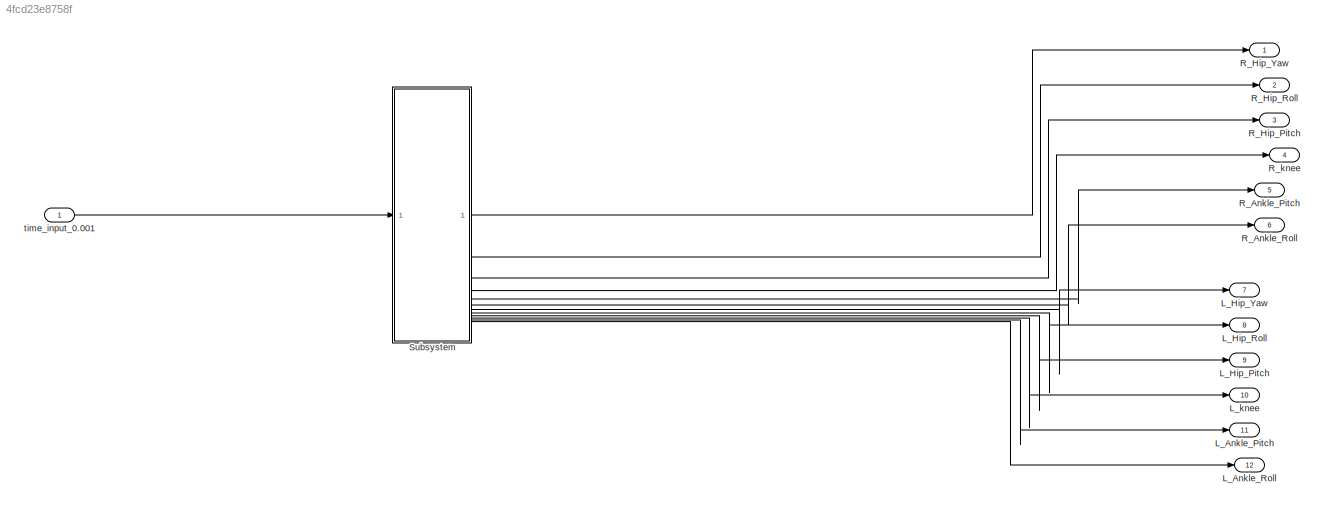
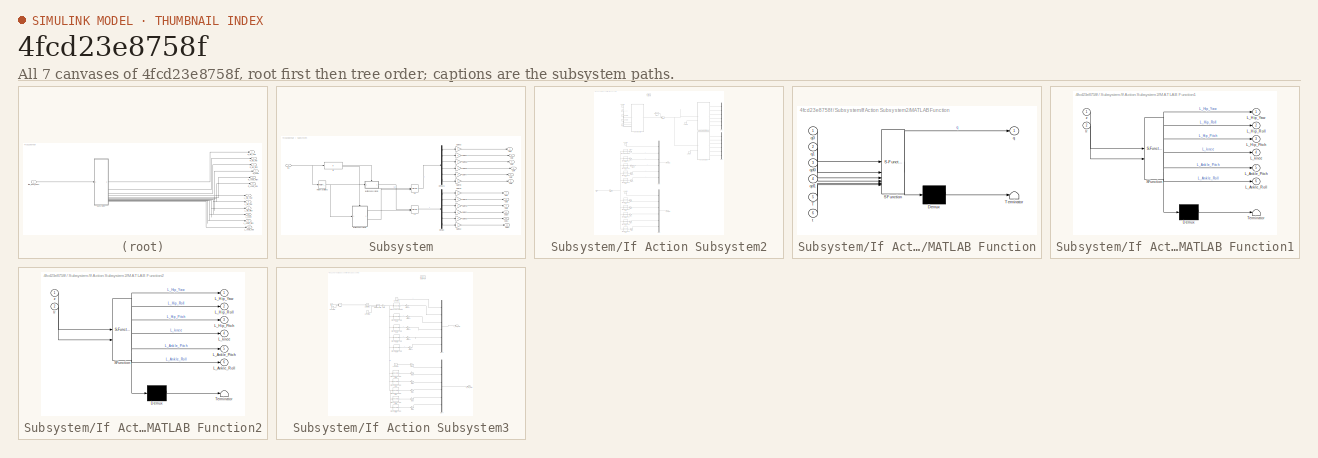
[diagram: thumbnail index - all 7 canvases of the model, root first then tree order]
MODEL mdl_4fcd23e8758f
KIND model
CONFIG AbsTol = auto
CONFIG EnableMultiTasking = off
CONFIG FixedStep = auto
CONFIG MaxStep = 0.001
CONFIG MinStep = auto
CONFIG RelTol = 1e-3
CONFIG SampleTimeConstraint = Unconstrained
CONFIG SolverName = VariableStepDiscrete
CONFIG StartTime = 0.0
CONFIG StopTime = inf
BLOCK [Outport] L_Ankle_Pitch
  Port = 11
BLOCK [Outport] L_Ankle_Roll
  Port = 12
BLOCK [Outport] L_Hip_Pitch
  Port = 9
BLOCK [Outport] L_Hip_Roll
  Port = 8
BLOCK [Outport] L_Hip_Yaw
  Port = 7
BLOCK [Outport] L_knee
  Port = 10
BLOCK [Outport] R_Ankle_Pitch
  Port = 5
BLOCK [Outport] R_Ankle_Roll
  Port = 6
BLOCK [Outport] R_Hip_Pitch
  Port = 3
BLOCK [Outport] R_Hip_Roll
  Port = 2
BLOCK [Outport] R_Hip_Yaw
BLOCK [Outport] R_knee
  Port = 4
BLOCK [SubSystem] Subsystem
BLOCK [Demux] Subsystem/Demux
  Outputs = 6
BLOCK [Demux] Subsystem/Demux1
  Outputs = 6
BLOCK [Gain] Subsystem/Gain45
  Gain = -1
BLOCK [Gain] Subsystem/Gain46
BLOCK [Gain] Subsystem/Gain47
BLOCK [Gain] Subsystem/Gain48
BLOCK [Gain] Subsystem/Gain49
BLOCK [Gain] Subsystem/Gain50
BLOCK [Gain] Subsystem/Gain51
BLOCK [Gain] Subsystem/Gain52
  Gain = -1
BLOCK [Gain] Subsystem/Gain53
BLOCK [Gain] Subsystem/Gain54
  Gain = -1
BLOCK [Gain] Subsystem/Gain55
  Gain = -1
BLOCK [Gain] Subsystem/Gain56
  Gain = -1
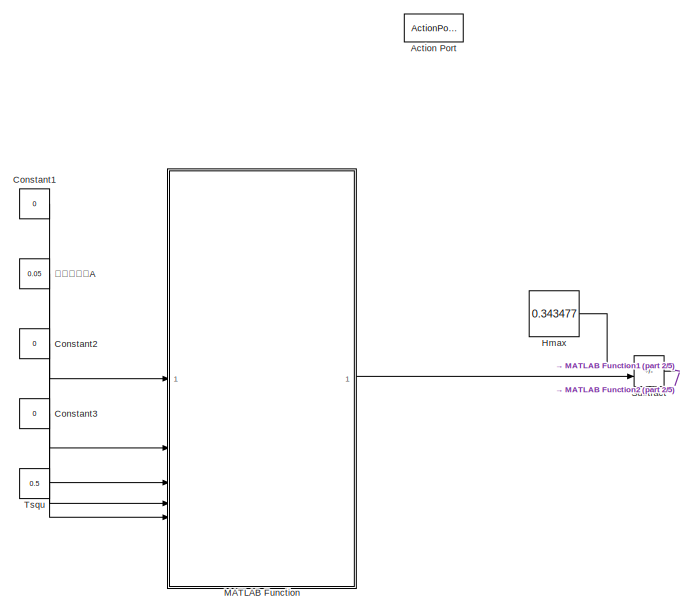
[diagram: Subsystem/If Action Subsystem2 - part 1/5, top center region]
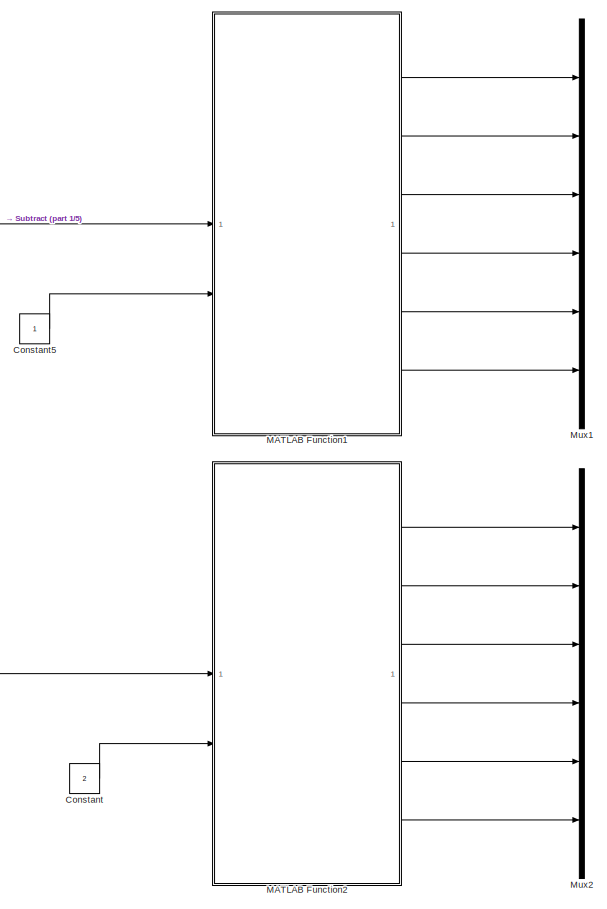
[diagram: Subsystem/If Action Subsystem2 - part 2/5, top right region]
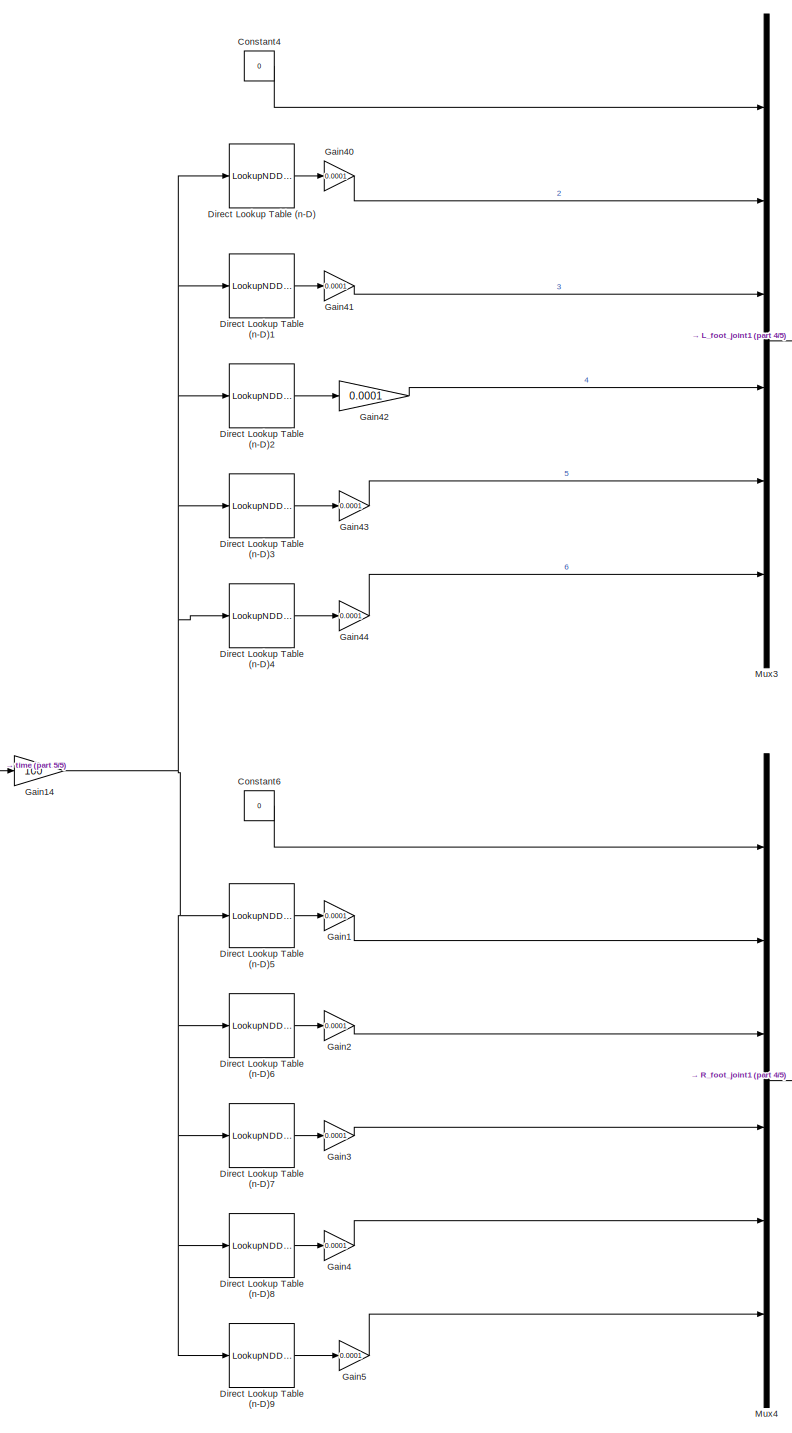
[diagram: Subsystem/If Action Subsystem2 - part 3/5, middle left region]
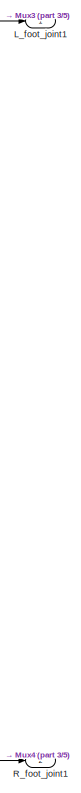
[diagram: Subsystem/If Action Subsystem2 - part 4/5, central region]
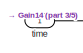
[diagram: Subsystem/If Action Subsystem2 - part 5/5, bottom left region]
BLOCK [SubSystem] Subsystem/If Action Subsystem2
  TreatAsAtomicUnit = on
BLOCK [ActionPort] Subsystem/If Action Subsystem2/Action Port
  ActionPortLabel = if(u1<= 2)
BLOCK [Constant] Subsystem/If Action Subsystem2/Constant
  Commented = on
  Value = 2
BLOCK [Constant] Subsystem/If Action Subsystem2/Constant1
  Commented = on
  Value = 0
BLOCK [Constant] Subsystem/If Action Subsystem2/Constant2
  Commented = on
  Value = 0
BLOCK [Constant] Subsystem/If Action Subsystem2/Constant3
  Commented = on
  Value = 0
BLOCK [Constant] Subsystem/If Action Subsystem2/Constant4
  SampleTime = -1
  Value = 0
BLOCK [Constant] Subsystem/If Action Subsystem2/Constant5
  Commented = on
BLOCK [Constant] Subsystem/If Action Subsystem2/Constant6
  SampleTime = -1
  Value = 0
BLOCK [LookupNDDirect] Subsystem/If Action Subsystem2/Direct Lookup Table (n-D)
  NumberOfTableDimensions = 1
  RemoveProtectionInput = on
  Table = [0;0;0;0;0;0;0;0;0;0;0;0;0;0;0;0;0;0;0;0;0;0;0;0;0;0;0;0;0;0;0;0;0;0;0;0;0;0;0;0;0;0;0;0;0;0;0;0;0;0;0;0;0;0;0;0;0;0;0;0;0;0;0;0;0;0;0;0;0;0;0;0;0;0;0;0;0;0;0;0;0;0;0;0;0;0;0;0;0;0;0;0;0;0;0;0;0;0;0;0;0;0;0;0;0;0;0;0;0;0;0;0;0;0;0;0;0;0;0;0;0;0;0;0;0;0;0;0;0;0;0;0;0;0;0;0;0;0;0;0;0;0;0;0;0;0;0;0;0;0;0;0;0;0;0;0;0;0;0;0;0;0;0;0;0;0;0;0;0;0;0;0;0;0;0;0;0;0;0;0;0;0;0;0;0;0;0;0;0;0;0;0;0;0;0;0;0;0;0;0...<+6884ch>
BLOCK [LookupNDDirect] Subsystem/If Action Subsystem2/Direct Lookup Table (n-D)1
  NumberOfTableDimensions = 1
  RemoveProtectionInput = on
  Table = [0;0;0;0;0;0;0;0;0;0;0;0;0;0;0;0;0;0;0;0;0;0;0;0;0;0;0;0;0;0;0;0;0;0;0;0;0;0;0;0;0;0;0;0;0;0;0;0;0;0;0;0;0;0;0;0;0;0;0;0;0;0;0;0;0;0;0;0;0;0;0;0;0;0;0;0;0;0;0;0;0;0;0;0;0;0;0;0;0;0;0;0;0;0;0;0;0;0;0;0;0;0;0;0;0;0;0;0;0;0;0;0;0;0;0;0;0;0;0;0;0;0;0;0;0;0;0;0;0;0;0;0;0;0;0;0;0;0;0;0;0;0;0;0;0;0;0;0;0;0;0;0;0;0;0;0;0;0;0;0;0;0;0;0;0;0;0;0;0;0;0;0;0;0;0;0;0;0;0;0;0;0;0;0;0;0;0;0;0;0;0;0;0;0;0;0;0;0;0;0...<+8058ch>
BLOCK [LookupNDDirect] Subsystem/If Action Subsystem2/Direct Lookup Table (n-D)2
  NumberOfTableDimensions = 1
  RemoveProtectionInput = on
  Table = [0;0;0;0;0;0;0;0;0;0;0;0;0;0;0;0;0;0;0;0;0;0;0;0;0;0;0;0;0;0;0;0;0;0;0;0;0;0;0;0;0;0;0;0;0;0;0;0;0;0;0;0;0;0;0;0;0;0;0;0;0;0;0;0;0;0;0;0;0;0;0;0;0;0;0;0;0;0;0;0;0;0;0;0;0;0;0;0;0;0;0;0;0;0;0;0;0;0;0;0;0;0;0;0;0;0;0;0;0;0;0;0;0;0;0;0;0;0;0;0;0;0;0;0;0;0;0;0;0;0;0;0;0;0;0;0;0;0;0;0;0;0;0;0;0;0;0;0;0;0;0;0;0;0;0;0;0;0;0;0;0;0;0;0;0;0;0;0;0;0;0;0;0;0;0;0;0;0;0;0;0;0;0;0;0;0;0;0;0;0;0;0;0;0;0;0;0;0;0;0...<+9363ch>
BLOCK [LookupNDDirect] Subsystem/If Action Subsystem2/Direct Lookup Table (n-D)3
  NumberOfTableDimensions = 1
  RemoveProtectionInput = on
  Table = [0;0;0;0;0;0;0;0;0;0;0;0;0;0;0;0;0;0;0;0;0;0;0;0;0;0;0;0;0;0;0;0;0;0;0;0;0;0;0;0;0;0;0;0;0;0;0;0;0;0;0;0;0;0;0;0;0;0;0;0;0;0;0;0;0;0;0;0;0;0;0;0;0;0;0;0;0;0;0;0;0;0;0;0;0;0;0;0;0;0;0;0;0;0;0;0;0;0;0;0;0;0;0;0;0;0;0;0;0;0;0;0;0;0;0;0;0;0;0;0;0;0;0;0;0;0;0;0;0;0;0;0;0;0;0;0;0;0;0;0;0;0;0;0;0;0;0;0;0;0;0;0;0;0;0;0;0;0;0;0;0;0;0;0;0;0;0;0;0;0;0;0;0;0;0;0;0;0;0;0;0;0;0;0;0;0;0;0;0;0;0;0;0;0;0;0;0;0;0;0...<+8314ch>
BLOCK [LookupNDDirect] Subsystem/If Action Subsystem2/Direct Lookup Table (n-D)4
  NumberOfTableDimensions = 1
  RemoveProtectionInput = on
  Table = [0;0;0;0;0;0;0;0;0;0;0;0;0;0;0;0;0;0;0;0;0;0;0;0;0;0;0;0;0;0;0;0;0;0;0;0;0;0;0;0;0;0;0;0;0;0;0;0;0;0;0;0;0;0;0;0;0;0;0;0;0;0;0;0;0;0;0;0;0;0;0;0;0;0;0;0;0;0;0;0;0;0;0;0;0;0;0;0;0;0;0;0;0;0;0;0;0;0;0;0;0;0;0;0;0;0;0;0;0;0;0;0;0;0;0;0;0;0;0;0;0;0;0;0;0;0;0;0;0;0;0;0;0;0;0;0;0;0;0;0;0;0;0;0;0;0;0;0;0;0;0;0;0;0;0;0;0;0;0;0;0;0;0;0;0;0;0;0;0;0;0;0;0;0;0;0;0;0;0;0;0;0;0;0;0;0;0;0;0;0;0;0;0;0;0;0;0;0;0;0...<+5915ch>
BLOCK [LookupNDDirect] Subsystem/If Action Subsystem2/Direct Lookup Table (n-D)5
  NumberOfTableDimensions = 1
  RemoveProtectionInput = on
  Table = [0;0;0;0;0;0;0;0;0;0;0;0;0;0;0;0;0;0;0;0;0;0;0;0;0;0;0;0;0;0;0;0;0;0;0;0;0;0;0;0;0;0;0;0;0;0;0;0;0;0;0;0;0;0;0;0;0;0;0;0;0;0;0;0;0;0;0;0;0;0;0;0;0;0;0;0;0;0;0;0;0;0;0;0;0;0;0;0;0;0;0;0;0;0;0;0;0;0;0;0;0;0;0;0;0;0;0;0;0;0;0;0;0;0;0;0;0;0;0;0;0;0;0;0;0;0;0;0;0;0;0;0;0;0;0;0;0;0;0;0;0;0;0;0;0;0;0;0;0;0;0;0;0;0;0;0;0;0;0;0;0;0;0;0;0;0;0;0;0;0;0;0;0;0;0;0;0;0;0;0;0;0;0;0;0;0;0;0;0;0;0;0;0;0;0;0;0;0;0;0...<+6884ch>
BLOCK [LookupNDDirect] Subsystem/If Action Subsystem2/Direct Lookup Table (n-D)6
  NumberOfTableDimensions = 1
  RemoveProtectionInput = on
  Table = [0;0;0;0;0;0;0;0;0;0;0;0;0;0;0;0;0;0;0;0;0;0;0;0;0;0;0;0;0;0;0;0;0;0;0;0;0;0;0;0;0;0;0;0;0;0;0;0;0;0;0;0;0;0;0;0;0;0;0;0;0;0;0;0;0;0;0;0;0;0;0;0;0;0;0;0;0;0;0;0;0;0;0;0;0;0;0;0;0;0;0;0;0;0;0;0;0;0;0;0;0;0;0;0;0;0;0;0;0;0;0;0;0;0;0;0;0;0;0;0;0;0;0;0;0;0;0;0;0;0;0;0;0;0;0;0;0;0;0;0;0;0;0;0;0;0;0;0;0;0;0;0;0;0;0;0;0;0;0;0;0;0;0;0;0;0;0;0;0;0;0;0;0;0;0;0;0;0;0;0;0;0;0;0;0;0;0;0;0;0;0;0;0;0;0;0;0;0;0;0...<+8058ch>
BLOCK [LookupNDDirect] Subsystem/If Action Subsystem2/Direct Lookup Table (n-D)7
  NumberOfTableDimensions = 1
  RemoveProtectionInput = on
  Table = [0;0;0;0;0;0;0;0;0;0;0;0;0;0;0;0;0;0;0;0;0;0;0;0;0;0;0;0;0;0;0;0;0;0;0;0;0;0;0;0;0;0;0;0;0;0;0;0;0;0;0;0;0;0;0;0;0;0;0;0;0;0;0;0;0;0;0;0;0;0;0;0;0;0;0;0;0;0;0;0;0;0;0;0;0;0;0;0;0;0;0;0;0;0;0;0;0;0;0;0;0;0;0;0;0;0;0;0;0;0;0;0;0;0;0;0;0;0;0;0;0;0;0;0;0;0;0;0;0;0;0;0;0;0;0;0;0;0;0;0;0;0;0;0;0;0;0;0;0;0;0;0;0;0;0;0;0;0;0;0;0;0;0;0;0;0;0;0;0;0;0;0;0;0;0;0;0;0;0;0;0;0;0;0;0;0;0;0;0;0;0;0;0;0;0;0;0;0;0;0...<+9363ch>
BLOCK [LookupNDDirect] Subsystem/If Action Subsystem2/Direct Lookup Table (n-D)8
  NumberOfTableDimensions = 1
  RemoveProtectionInput = on
  Table = [0;0;0;0;0;0;0;0;0;0;0;0;0;0;0;0;0;0;0;0;0;0;0;0;0;0;0;0;0;0;0;0;0;0;0;0;0;0;0;0;0;0;0;0;0;0;0;0;0;0;0;0;0;0;0;0;0;0;0;0;0;0;0;0;0;0;0;0;0;0;0;0;0;0;0;0;0;0;0;0;0;0;0;0;0;0;0;0;0;0;0;0;0;0;0;0;0;0;0;0;0;0;0;0;0;0;0;0;0;0;0;0;0;0;0;0;0;0;0;0;0;0;0;0;0;0;0;0;0;0;0;0;0;0;0;0;0;0;0;0;0;0;0;0;0;0;0;0;0;0;0;0;0;0;0;0;0;0;0;0;0;0;0;0;0;0;0;0;0;0;0;0;0;0;0;0;0;0;0;0;0;0;0;0;0;0;0;0;0;0;0;0;0;0;0;0;0;0;0;0...<+8075ch>
BLOCK [LookupNDDirect] Subsystem/If Action Subsystem2/Direct Lookup Table (n-D)9
  NumberOfTableDimensions = 1
  RemoveProtectionInput = on
  Table = [0;0;0;0;0;0;0;0;0;0;0;0;0;0;0;0;0;0;0;0;0;0;0;0;0;0;0;0;0;0;0;0;0;0;0;0;0;0;0;0;0;0;0;0;0;0;0;0;0;0;0;0;0;0;0;0;0;0;0;0;0;0;0;0;0;0;0;0;0;0;0;0;0;0;0;0;0;0;0;0;0;0;0;0;0;0;0;0;0;0;0;0;0;0;0;0;0;0;0;0;0;0;0;0;0;0;0;0;0;0;0;0;0;0;0;0;0;0;0;0;0;0;0;0;0;0;0;0;0;0;0;0;0;0;0;0;0;0;0;0;0;0;0;0;0;0;0;0;0;0;0;0;0;0;0;0;0;0;0;0;0;0;0;0;0;0;0;0;0;0;0;0;0;0;0;0;0;0;0;0;0;0;0;0;0;0;0;0;0;0;0;0;0;0;0;0;0;0;0;0...<+5915ch>
BLOCK [Gain] Subsystem/If Action Subsystem2/Gain1
  Gain = 0.0001
BLOCK [Gain] Subsystem/If Action Subsystem2/Gain14
  Gain = 100
BLOCK [Gain] Subsystem/If Action Subsystem2/Gain2
  Gain = 0.0001
BLOCK [Gain] Subsystem/If Action Subsystem2/Gain3
  Gain = 0.0001
BLOCK [Gain] Subsystem/If Action Subsystem2/Gain4
  Gain = 0.0001
BLOCK [Gain] Subsystem/If Action Subsystem2/Gain40
  Gain = 0.0001
BLOCK [Gain] Subsystem/If Action Subsystem2/Gain41
  Gain = 0.0001
BLOCK [Gain] Subsystem/If Action Subsystem2/Gain42
  Gain = 0.0001
BLOCK [Gain] Subsystem/If Action Subsystem2/Gain43
  Gain = 0.0001
BLOCK [Gain] Subsystem/If Action Subsystem2/Gain44
  Gain = 0.0001
BLOCK [Gain] Subsystem/If Action Subsystem2/Gain5
  Gain = 0.0001
BLOCK [Constant] Subsystem/If Action Subsystem2/Hmax
  Commented = on
  Value = 0.343477
BLOCK [Outport] Subsystem/If Action Subsystem2/L_foot_joint1
BLOCK [SubSystem] Subsystem/If Action Subsystem2/MATLAB Function
  Commented = on
  ErrorFcn = Stateflow.Translate.translate
  LibrarySourceBlock = simulink/User-Defined\nFunctions/MATLAB Function
  PermitHierarchicalResolution = ExplicitOnly
  SFBlockType = MATLAB Function
  TreatAsAtomicUnit = on
BLOCK [Demux] Subsystem/If Action Subsystem2/MATLAB Function/ Demux 
  Outputs = 1
BLOCK [S-Function] Subsystem/If Action Subsystem2/MATLAB Function/ SFunction 
  EnableBusSupport = on
  FunctionName = sf_sfun
  PortCounts = [6 2]
  SFcnIsStateOwnerBlock = off
  SFunctionDeploymentMode = off
  Tag = Stateflow S-Function 2
BLOCK [Terminator] Subsystem/If Action Subsystem2/MATLAB Function/ Terminator 
BLOCK [Inport] Subsystem/If Action Subsystem2/MATLAB Function/T
  Port = 5
BLOCK [Outport] Subsystem/If Action Subsystem2/MATLAB Function/q
BLOCK [Inport] Subsystem/If Action Subsystem2/MATLAB Function/q0
BLOCK [Inport] Subsystem/If Action Subsystem2/MATLAB Function/q1
  Port = 2
BLOCK [Inport] Subsystem/If Action Subsystem2/MATLAB Function/qd0
  Port = 3
BLOCK [Inport] Subsystem/If Action Subsystem2/MATLAB Function/qd1
  Port = 4
BLOCK [Inport] Subsystem/If Action Subsystem2/MATLAB Function/t
  Port = 6
BLOCK [SubSystem] Subsystem/If Action Subsystem2/MATLAB Function1
  Commented = on
  ErrorFcn = Stateflow.Translate.translate
  LibrarySourceBlock = simulink/User-Defined\nFunctions/MATLAB Function
  PermitHierarchicalResolution = ExplicitOnly
  SFBlockType = MATLAB Function
  TreatAsAtomicUnit = on
BLOCK [Demux] Subsystem/If Action Subsystem2/MATLAB Function1/ Demux 
  Outputs = 1
BLOCK [S-Function] Subsystem/If Action Subsystem2/MATLAB Function1/ SFunction 
  EnableBusSupport = on
  FunctionName = sf_sfun
  PortCounts = [2 7]
  SFcnIsStateOwnerBlock = off
  SFunctionDeploymentMode = off
  Tag = Stateflow S-Function 5
BLOCK [Terminator] Subsystem/If Action Subsystem2/MATLAB Function1/ Terminator 
BLOCK [Outport] Subsystem/If Action Subsystem2/MATLAB Function1/L_Ankle_Pitch
  Port = 5
BLOCK [Outport] Subsystem/If Action Subsystem2/MATLAB Function1/L_Ankle_Roll
  Port = 6
BLOCK [Outport] Subsystem/If Action Subsystem2/MATLAB Function1/L_Hip_Pitch
  Port = 3
BLOCK [Outport] Subsystem/If Action Subsystem2/MATLAB Function1/L_Hip_Roll
  Port = 2
BLOCK [Outport] Subsystem/If Action Subsystem2/MATLAB Function1/L_Hip_Yaw
BLOCK [Outport] Subsystem/If Action Subsystem2/MATLAB Function1/L_knee
  Port = 4
BLOCK [Inport] Subsystem/If Action Subsystem2/MATLAB Function1/lr
  Port = 2
BLOCK [Inport] Subsystem/If Action Subsystem2/MATLAB Function1/z
BLOCK [SubSystem] Subsystem/If Action Subsystem2/MATLAB Function2
  Commented = on
  ErrorFcn = Stateflow.Translate.translate
  LibrarySourceBlock = simulink/User-Defined\nFunctions/MATLAB Function
  PermitHierarchicalResolution = ExplicitOnly
  SFBlockType = MATLAB Function
  TreatAsAtomicUnit = on
BLOCK [Demux] Subsystem/If Action Subsystem2/MATLAB Function2/ Demux 
  Outputs = 1
BLOCK [S-Function] Subsystem/If Action Subsystem2/MATLAB Function2/ SFunction 
  EnableBusSupport = on
  FunctionName = sf_sfun
  PortCounts = [2 7]
  SFcnIsStateOwnerBlock = off
  SFunctionDeploymentMode = off
  Tag = Stateflow S-Function 6
BLOCK [Terminator] Subsystem/If Action Subsystem2/MATLAB Function2/ Terminator 
BLOCK [Outport] Subsystem/If Action Subsystem2/MATLAB Function2/L_Ankle_Pitch
  Port = 5
BLOCK [Outport] Subsystem/If Action Subsystem2/MATLAB Function2/L_Ankle_Roll
  Port = 6
BLOCK [Outport] Subsystem/If Action Subsystem2/MATLAB Function2/L_Hip_Pitch
  Port = 3
BLOCK [Outport] Subsystem/If Action Subsystem2/MATLAB Function2/L_Hip_Roll
  Port = 2
BLOCK [Outport] Subsystem/If Action Subsystem2/MATLAB Function2/L_Hip_Yaw
BLOCK [Outport] Subsystem/If Action Subsystem2/MATLAB Function2/L_knee
  Port = 4
BLOCK [Inport] Subsystem/If Action Subsystem2/MATLAB Function2/lr
  Port = 2
BLOCK [Inport] Subsystem/If Action Subsystem2/MATLAB Function2/z
BLOCK [Mux] Subsystem/If Action Subsystem2/Mux1
  Commented = on
  DisplayOption = bar
  Inputs = 6
BLOCK [Mux] Subsystem/If Action Subsystem2/Mux2
  Commented = on
  DisplayOption = bar
  Inputs = 6
BLOCK [Mux] Subsystem/If Action Subsystem2/Mux3
  DisplayOption = bar
  Inputs = 6
BLOCK [Mux] Subsystem/If Action Subsystem2/Mux4
  DisplayOption = bar
  Inputs = 6
BLOCK [Outport] Subsystem/If Action Subsystem2/R_foot_joint1
  Port = 2
BLOCK [Sum] Subsystem/If Action Subsystem2/Subtract
  Commented = on
  IconShape = rectangular
  Inputs = +-
BLOCK [Constant] Subsystem/If Action Subsystem2/Tsqu
  Commented = on
  Value = 0.5
BLOCK [Inport] Subsystem/If Action Subsystem2/time
BLOCK [Constant] Subsystem/If Action Subsystem2/高度变化量A
  Commented = on
  Value = 0.05
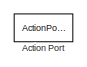
[diagram: Subsystem/If Action Subsystem3 - part 1/4, top center region]
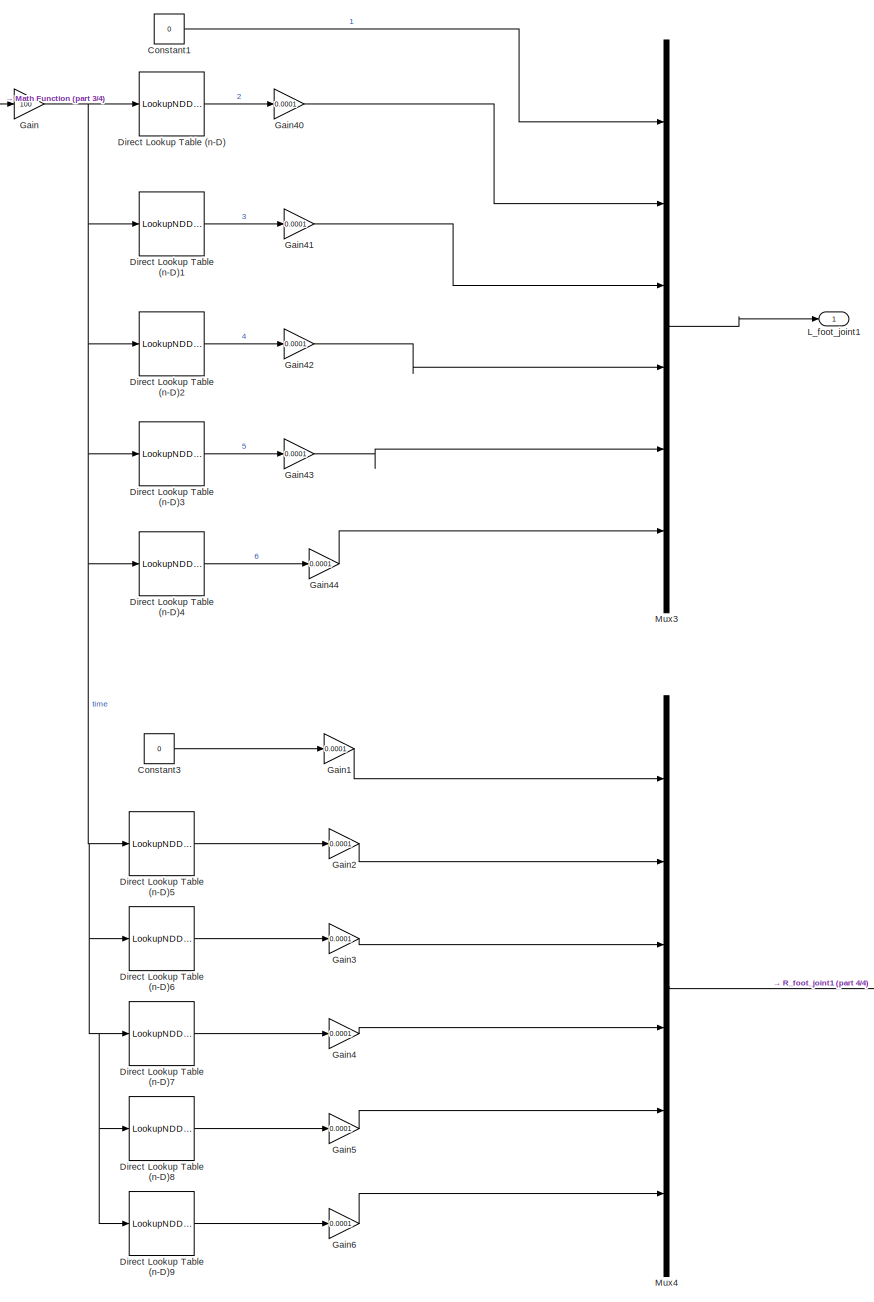
[diagram: Subsystem/If Action Subsystem3 - part 2/4, center side, full height]
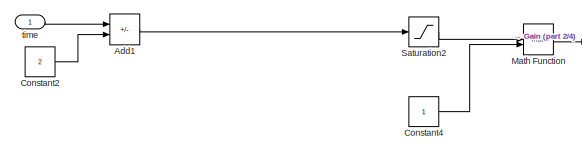
[diagram: Subsystem/If Action Subsystem3 - part 3/4, top left region]
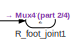
[diagram: Subsystem/If Action Subsystem3 - part 4/4, bottom right region]
BLOCK [SubSystem] Subsystem/If Action Subsystem3
  TreatAsAtomicUnit = on
BLOCK [ActionPort] Subsystem/If Action Subsystem3/Action Port
  ActionPortLabel = else
BLOCK [Sum] Subsystem/If Action Subsystem3/Add1
  IconShape = rectangular
  Inputs = +-
BLOCK [Constant] Subsystem/If Action Subsystem3/Constant1
  SampleTime = -1
  Value = 0
BLOCK [Constant] Subsystem/If Action Subsystem3/Constant2
  Value = 2
BLOCK [Constant] Subsystem/If Action Subsystem3/Constant3
  SampleTime = -1
  Value = 0
BLOCK [Constant] Subsystem/If Action Subsystem3/Constant4
BLOCK [LookupNDDirect] Subsystem/If Action Subsystem3/Direct Lookup Table (n-D)
  NumberOfTableDimensions = 1
  RemoveProtectionInput = on
  Table = [-65;-45;-25;-5;16;36;56;76;97;117;137;157;177;197;217;237;257;277;296;316;336;355;375;395;414;433;453;472;491;510;529;548;567;586;605;623;642;660;679;697;715;733;751;769;787;805;823;840;858;875;892;909;926;943;960;977;993;1010;1026;1043;1059;1075;1091;1107;1122;1138;1153;1169;1184;1199;1214;1229;1244;1259;1274;1288;1302;1317;1331;1345;1359;1373;1386;1400;1413;1427;1440;1453;1466;1479;1492;1505;15...<+4858ch>
BLOCK [LookupNDDirect] Subsystem/If Action Subsystem3/Direct Lookup Table (n-D)1
  NumberOfTableDimensions = 1
  RemoveProtectionInput = on
  Table = [5684;5686;5688;5690;5692;5694;5696;5698;5700;5702;5704;5706;5707;5709;5711;5712;5714;5715;5717;5718;5720;5721;5722;5723;5725;5726;5727;5728;5729;5730;5731;5732;5732;5733;5734;5735;5735;5736;5737;5737;5738;5738;5739;5739;5739;5740;5740;5740;5741;5741;5741;5741;5741;5741;5741;5741;5741;5741;5741;5741;5741;5741;5741;5741;5740;5740;5740;5740;5739;5739;5739;5738;5738;5737;5737;5736;5736;5735;5735;5734...<+4601ch>
BLOCK [LookupNDDirect] Subsystem/If Action Subsystem3/Direct Lookup Table (n-D)2
  NumberOfTableDimensions = 1
  RemoveProtectionInput = on
  Table = [14920;14927;14933;14940;14947;14953;14959;14965;14971;14977;14982;14988;14993;14998;15003;15008;15013;15018;15022;15026;15031;15035;15039;15042;15046;15049;15053;15056;15059;15062;15065;15068;15070;15073;15075;15078;15080;15082;15083;15085;15087;15088;15090;15091;15092;15093;15094;15095;15096;15097;15097;15098;15098;15098;15098;15098;15098;15098;15098;15098;15097;15097;15096;15096;15095;15094;150...<+5601ch>
BLOCK [LookupNDDirect] Subsystem/If Action Subsystem3/Direct Lookup Table (n-D)3
  NumberOfTableDimensions = 1
  RemoveProtectionInput = on
  Table = [9236;9241;9245;9250;9254;9258;9263;9267;9271;9275;9278;9282;9286;9289;9293;9296;9299;9302;9305;9308;9311;9314;9316;9319;9321;9324;9326;9328;9330;9332;9334;9336;9338;9340;9341;9343;9344;9346;9347;9348;9349;9350;9351;9352;9353;9353;9354;9355;9355;9356;9356;9356;9357;9357;9357;9357;9357;9357;9357;9356;9356;9356;9356;9355;9355;9354;9354;9353;9352;9352;9351;9350;9349;9348;9347;9346;9345;9344;9343;9342...<+4847ch>
BLOCK [LookupNDDirect] Subsystem/If Action Subsystem3/Direct Lookup Table (n-D)4
  NumberOfTableDimensions = 1
  RemoveProtectionInput = on
  Table = [65;45;25;5;-16;-36;-56;-76;-97;-117;-137;-157;-177;-197;-217;-237;-257;-277;-296;-316;-336;-355;-375;-395;-414;-433;-453;-472;-491;-510;-529;-548;-567;-586;-605;-623;-642;-660;-679;-697;-715;-733;-751;-769;-787;-805;-823;-840;-858;-875;-892;-909;-926;-943;-960;-977;-993;-1010;-1026;-1043;-1059;-1075;-1091;-1107;-1122;-1138;-1153;-1169;-1184;-1199;-1214;-1229;-1244;-1259;-1274;-1288;-1302;-1317;-1...<+4849ch>
BLOCK [LookupNDDirect] Subsystem/If Action Subsystem3/Direct Lookup Table (n-D)5
  NumberOfTableDimensions = 1
  RemoveProtectionInput = on
  Table = [-65;-45;-25;-5;16;36;56;76;97;117;137;157;177;197;217;237;257;277;296;316;336;355;375;395;414;433;453;472;491;510;530;549;568;587;605;624;643;662;680;699;717;736;754;772;791;809;827;845;863;881;898;916;934;951;969;986;1004;1021;1038;1055;1072;1089;1106;1123;1140;1156;1173;1190;1206;1222;1239;1255;1271;1287;1303;1319;1335;1351;1366;1382;1398;1413;1428;1444;1459;1474;1489;1504;1519;1534;1549;1564;1...<+4860ch>
BLOCK [LookupNDDirect] Subsystem/If Action Subsystem3/Direct Lookup Table (n-D)6
  NumberOfTableDimensions = 1
  RemoveProtectionInput = on
  Table = [5668;5666;5664;5662;5659;5657;5655;5652;5650;5647;5645;5642;5639;5637;5634;5631;5628;5625;5623;5620;5617;5614;5611;5607;5604;5602;5599;5596;5594;5592;5590;5588;5586;5585;5584;5583;5582;5581;5580;5580;5580;5579;5580;5580;5580;5581;5582;5583;5584;5585;5586;5588;5590;5591;5594;5596;5598;5601;5603;5606;5609;5612;5615;5619;5622;5626;5630;5634;5638;5642;5647;5651;5656;5661;5665;5670;5676;5681;5686;5692...<+4601ch>
BLOCK [LookupNDDirect] Subsystem/If Action Subsystem3/Direct Lookup Table (n-D)7
  NumberOfTableDimensions = 1
  RemoveProtectionInput = on
  Table = [14873;14866;14859;14853;14846;14838;14831;14824;14816;14808;14801;14793;14784;14776;14768;14759;14751;14742;14733;14724;14715;14706;14696;14687;14678;14669;14661;14653;14646;14640;14634;14628;14623;14619;14615;14612;14609;14606;14605;14603;14603;14602;14603;14603;14605;14606;14609;14611;14615;14619;14623;14628;14633;14639;14645;14651;14659;14666;14674;14683;14692;14701;14711;14722;14733;14744;147...<+5601ch>
BLOCK [LookupNDDirect] Subsystem/If Action Subsystem3/Direct Lookup Table (n-D)8
  NumberOfTableDimensions = 1
  RemoveProtectionInput = on
  Table = [9205;9200;9196;9191;9186;9181;9176;9171;9166;9161;9156;9151;9145;9140;9134;9128;9122;9117;9111;9105;9098;9092;9086;9080;9073;9068;9062;9057;9052;9048;9044;9040;9037;9034;9031;9029;9027;9026;9024;9024;9023;9023;9023;9024;9024;9026;9027;9029;9031;9034;9037;9040;9043;9047;9051;9056;9061;9066;9071;9077;9083;9089;9096;9103;9110;9118;9126;9134;9142;9151;9160;9169;9179;9189;9199;9209;9220;9231;9242;9253...<+4846ch>
BLOCK [LookupNDDirect] Subsystem/If Action Subsystem3/Direct Lookup Table (n-D)9
  NumberOfTableDimensions = 1
  RemoveProtectionInput = on
  Table = [65;45;25;5;-16;-36;-56;-76;-97;-117;-137;-157;-177;-197;-217;-237;-257;-277;-296;-316;-336;-355;-375;-395;-414;-433;-453;-472;-491;-510;-530;-549;-568;-587;-605;-624;-643;-662;-680;-699;-717;-736;-754;-772;-791;-809;-827;-845;-863;-881;-898;-916;-934;-951;-969;-986;-1004;-1021;-1038;-1055;-1072;-1089;-1106;-1123;-1140;-1156;-1173;-1190;-1206;-1222;-1239;-1255;-1271;-1287;-1303;-1319;-1335;-1351;-...<+4851ch>
BLOCK [Gain] Subsystem/If Action Subsystem3/Gain
  Gain = 100
BLOCK [Gain] Subsystem/If Action Subsystem3/Gain1
  Gain = 0.0001
BLOCK [Gain] Subsystem/If Action Subsystem3/Gain2
  Gain = 0.0001
BLOCK [Gain] Subsystem/If Action Subsystem3/Gain3
  Gain = 0.0001
BLOCK [Gain] Subsystem/If Action Subsystem3/Gain4
  Gain = 0.0001
BLOCK [Gain] Subsystem/If Action Subsystem3/Gain40
  Gain = 0.0001
BLOCK [Gain] Subsystem/If Action Subsystem3/Gain41
  Gain = 0.0001
BLOCK [Gain] Subsystem/If Action Subsystem3/Gain42
  Gain = 0.0001
BLOCK [Gain] Subsystem/If Action Subsystem3/Gain43
  Gain = 0.0001
BLOCK [Gain] Subsystem/If Action Subsystem3/Gain44
  Gain = 0.0001
BLOCK [Gain] Subsystem/If Action Subsystem3/Gain5
  Gain = 0.0001
BLOCK [Gain] Subsystem/If Action Subsystem3/Gain6
  Gain = 0.0001
BLOCK [Outport] Subsystem/If Action Subsystem3/L_foot_joint1
BLOCK [Math] Subsystem/If Action Subsystem3/Math Function
  Operator = mod
BLOCK [Mux] Subsystem/If Action Subsystem3/Mux3
  DisplayOption = bar
  Inputs = 6
BLOCK [Mux] Subsystem/If Action Subsystem3/Mux4
  DisplayOption = bar
  Inputs = 6
BLOCK [Outport] Subsystem/If Action Subsystem3/R_foot_joint1
  Port = 2
BLOCK [Saturate] Subsystem/If Action Subsystem3/Saturation2
  LowerLimit = 0
  UpperLimit = inf
BLOCK [Inport] Subsystem/If Action Subsystem3/time
BLOCK [If] Subsystem/If1
  IfExpression = u1<= 2
BLOCK [Inport] Subsystem/In1
BLOCK [Merge] Subsystem/L1
BLOCK [Outport] Subsystem/Out1
BLOCK [Outport] Subsystem/Out10
  Port = 10
BLOCK [Outport] Subsystem/Out11
  Port = 11
BLOCK [Outport] Subsystem/Out12
  Port = 12
BLOCK [Outport] Subsystem/Out2
  Port = 2
BLOCK [Outport] Subsystem/Out3
  Port = 3
BLOCK [Outport] Subsystem/Out4
  Port = 4
BLOCK [Outport] Subsystem/Out5
  Port = 5
BLOCK [Outport] Subsystem/Out6
  Port = 6
BLOCK [Outport] Subsystem/Out7
  Port = 7
BLOCK [Outport] Subsystem/Out8
  Port = 8
BLOCK [Outport] Subsystem/Out9
  Port = 9
BLOCK [Merge] Subsystem/R1
BLOCK [RateTransition] Subsystem/Rate Transition2
  OutPortSampleTime = 0.01
BLOCK [Inport] time_input_0.001
LINE Subsystem/Demux1:1 -> Subsystem/Gain53:1
LINE Subsystem/Demux1:2 -> Subsystem/Gain54:1
LINE Subsystem/Demux1:3 -> Subsystem/Gain55:1
LINE Subsystem/Demux1:4 -> Subsystem/Gain56:1
LINE Subsystem/Demux1:5 -> Subsystem/Gain47:1
LINE Subsystem/Demux1:6 -> Subsystem/Gain48:1
LINE Subsystem/Demux:1 -> Subsystem/Gain49:1
LINE Subsystem/Demux:2 -> Subsystem/Gain46:1
LINE Subsystem/Demux:3 -> Subsystem/Gain45:1
LINE Subsystem/Demux:4 -> Subsystem/Gain51:1
LINE Subsystem/Demux:5 -> Subsystem/Gain50:1
LINE Subsystem/Demux:6 -> Subsystem/Gain52:1
LINE Subsystem/Gain45:1 -> Subsystem/Out9:1
LINE Subsystem/Gain46:1 -> Subsystem/Out8:1
LINE Subsystem/Gain47:1 -> Subsystem/Out5:1
LINE Subsystem/Gain48:1 -> Subsystem/Out6:1
LINE Subsystem/Gain49:1 -> Subsystem/Out7:1
LINE Subsystem/Gain50:1 -> Subsystem/Out11:1
LINE Subsystem/Gain51:1 -> Subsystem/Out10:1
LINE Subsystem/Gain52:1 -> Subsystem/Out12:1
LINE Subsystem/Gain53:1 -> Subsystem/Out1:1
LINE Subsystem/Gain54:1 -> Subsystem/Out2:1
LINE Subsystem/Gain55:1 -> Subsystem/Out3:1
LINE Subsystem/Gain56:1 -> Subsystem/Out4:1
LINE Subsystem/If Action Subsystem2/Constant1:1 -> Subsystem/If Action Subsystem2/MATLAB Function:1
LINE Subsystem/If Action Subsystem2/Constant2:1 -> Subsystem/If Action Subsystem2/MATLAB Function:3
LINE Subsystem/If Action Subsystem2/Constant3:1 -> Subsystem/If Action Subsystem2/MATLAB Function:4
LINE Subsystem/If Action Subsystem2/Constant4:1 -> Subsystem/If Action Subsystem2/Mux3:1
LINE Subsystem/If Action Subsystem2/Constant5:1 -> Subsystem/If Action Subsystem2/MATLAB Function1:2
LINE Subsystem/If Action Subsystem2/Constant6:1 -> Subsystem/If Action Subsystem2/Mux4:1
LINE Subsystem/If Action Subsystem2/Constant:1 -> Subsystem/If Action Subsystem2/MATLAB Function2:2
LINE Subsystem/If Action Subsystem2/Direct Lookup Table (n-D)1:1 -> Subsystem/If Action Subsystem2/Gain41:1
LINE Subsystem/If Action Subsystem2/Direct Lookup Table (n-D)2:1 -> Subsystem/If Action Subsystem2/Gain42:1
LINE Subsystem/If Action Subsystem2/Direct Lookup Table (n-D)3:1 -> Subsystem/If Action Subsystem2/Gain43:1
LINE Subsystem/If Action Subsystem2/Direct Lookup Table (n-D)4:1 -> Subsystem/If Action Subsystem2/Gain44:1
LINE Subsystem/If Action Subsystem2/Direct Lookup Table (n-D)5:1 -> Subsystem/If Action Subsystem2/Gain1:1
LINE Subsystem/If Action Subsystem2/Direct Lookup Table (n-D)6:1 -> Subsystem/If Action Subsystem2/Gain2:1
LINE Subsystem/If Action Subsystem2/Direct Lookup Table (n-D)7:1 -> Subsystem/If Action Subsystem2/Gain3:1
LINE Subsystem/If Action Subsystem2/Direct Lookup Table (n-D)8:1 -> Subsystem/If Action Subsystem2/Gain4:1
LINE Subsystem/If Action Subsystem2/Direct Lookup Table (n-D)9:1 -> Subsystem/If Action Subsystem2/Gain5:1
LINE Subsystem/If Action Subsystem2/Direct Lookup Table (n-D):1 -> Subsystem/If Action Subsystem2/Gain40:1
NET Subsystem/If Action Subsystem2/Gain14:1 -> Subsystem/If Action Subsystem2/Direct Lookup Table (n-D)1:1, Subsystem/If Action Subsystem2/Direct Lookup Table (n-D)2:1, Subsystem/If Action Subsystem2/Direct Lookup Table (n-D)3:1, Subsystem/If Action Subsystem2/Direct Lookup Table (n-D)4:1, Subsystem/If Action Subsystem2/Direct Lookup Table (n-D)5:1, Subsystem/If Action Subsystem2/Direct Lookup Table (n-D)6:1, Subsystem/If Action Subsystem2/Direct Lookup Table (n-D)7:1, Subsystem/If Action Subsystem2/Direct Lookup Table (n-D)8:1, Subsystem/If Action Subsystem2/Direct Lookup Table (n-D)9:1, Subsystem/If Action Subsystem2/Direct Lookup Table (n-D):1
LINE Subsystem/If Action Subsystem2/Gain1:1 -> Subsystem/If Action Subsystem2/Mux4:2
LINE Subsystem/If Action Subsystem2/Gain2:1 -> Subsystem/If Action Subsystem2/Mux4:3
LINE Subsystem/If Action Subsystem2/Gain3:1 -> Subsystem/If Action Subsystem2/Mux4:4
LINE Subsystem/If Action Subsystem2/Gain40:1 -> Subsystem/If Action Subsystem2/Mux3:2
LINE Subsystem/If Action Subsystem2/Gain41:1 -> Subsystem/If Action Subsystem2/Mux3:3
LINE Subsystem/If Action Subsystem2/Gain42:1 -> Subsystem/If Action Subsystem2/Mux3:4
LINE Subsystem/If Action Subsystem2/Gain43:1 -> Subsystem/If Action Subsystem2/Mux3:5
LINE Subsystem/If Action Subsystem2/Gain44:1 -> Subsystem/If Action Subsystem2/Mux3:6
LINE Subsystem/If Action Subsystem2/Gain4:1 -> Subsystem/If Action Subsystem2/Mux4:5
LINE Subsystem/If Action Subsystem2/Gain5:1 -> Subsystem/If Action Subsystem2/Mux4:6
LINE Subsystem/If Action Subsystem2/Hmax:1 -> Subsystem/If Action Subsystem2/Subtract:1
LINE Subsystem/If Action Subsystem2/MATLAB Function1:1 -> Subsystem/If Action Subsystem2/Mux1:1
LINE Subsystem/If Action Subsystem2/MATLAB Function1:2 -> Subsystem/If Action Subsystem2/Mux1:2
LINE Subsystem/If Action Subsystem2/MATLAB Function1:3 -> Subsystem/If Action Subsystem2/Mux1:3
LINE Subsystem/If Action Subsystem2/MATLAB Function1:4 -> Subsystem/If Action Subsystem2/Mux1:4
LINE Subsystem/If Action Subsystem2/MATLAB Function1:5 -> Subsystem/If Action Subsystem2/Mux1:5
LINE Subsystem/If Action Subsystem2/MATLAB Function1:6 -> Subsystem/If Action Subsystem2/Mux1:6
LINE Subsystem/If Action Subsystem2/MATLAB Function2:1 -> Subsystem/If Action Subsystem2/Mux2:1
LINE Subsystem/If Action Subsystem2/MATLAB Function2:2 -> Subsystem/If Action Subsystem2/Mux2:2
LINE Subsystem/If Action Subsystem2/MATLAB Function2:3 -> Subsystem/If Action Subsystem2/Mux2:3
LINE Subsystem/If Action Subsystem2/MATLAB Function2:4 -> Subsystem/If Action Subsystem2/Mux2:4
LINE Subsystem/If Action Subsystem2/MATLAB Function2:5 -> Subsystem/If Action Subsystem2/Mux2:5
LINE Subsystem/If Action Subsystem2/MATLAB Function2:6 -> Subsystem/If Action Subsystem2/Mux2:6
LINE Subsystem/If Action Subsystem2/MATLAB Function:1 -> Subsystem/If Action Subsystem2/Subtract:2
LINE Subsystem/If Action Subsystem2/Mux3:1 -> Subsystem/If Action Subsystem2/L_foot_joint1:1
LINE Subsystem/If Action Subsystem2/Mux4:1 -> Subsystem/If Action Subsystem2/R_foot_joint1:1
NET Subsystem/If Action Subsystem2/Subtract:1 -> Subsystem/If Action Subsystem2/MATLAB Function1:1, Subsystem/If Action Subsystem2/MATLAB Function2:1
LINE Subsystem/If Action Subsystem2/Tsqu:1 -> Subsystem/If Action Subsystem2/MATLAB Function:5
LINE Subsystem/If Action Subsystem2/time:1 -> Subsystem/If Action Subsystem2/Gain14:1
LINE Subsystem/If Action Subsystem2/高度变化量A:1 -> Subsystem/If Action Subsystem2/MATLAB Function:2
LINE Subsystem/If Action Subsystem2:1 -> Subsystem/L1:1
LINE Subsystem/If Action Subsystem2:2 -> Subsystem/R1:1
LINE Subsystem/If Action Subsystem3/Add1:1 -> Subsystem/If Action Subsystem3/Saturation2:1
LINE Subsystem/If Action Subsystem3/Constant1:1 -> Subsystem/If Action Subsystem3/Mux3:1
LINE Subsystem/If Action Subsystem3/Constant2:1 -> Subsystem/If Action Subsystem3/Add1:2
LINE Subsystem/If Action Subsystem3/Constant3:1 -> Subsystem/If Action Subsystem3/Gain1:1
LINE Subsystem/If Action Subsystem3/Constant4:1 -> Subsystem/If Action Subsystem3/Math Function:2
LINE Subsystem/If Action Subsystem3/Direct Lookup Table (n-D)1:1 -> Subsystem/If Action Subsystem3/Gain41:1
LINE Subsystem/If Action Subsystem3/Direct Lookup Table (n-D)2:1 -> Subsystem/If Action Subsystem3/Gain42:1
LINE Subsystem/If Action Subsystem3/Direct Lookup Table (n-D)3:1 -> Subsystem/If Action Subsystem3/Gain43:1
LINE Subsystem/If Action Subsystem3/Direct Lookup Table (n-D)4:1 -> Subsystem/If Action Subsystem3/Gain44:1
LINE Subsystem/If Action Subsystem3/Direct Lookup Table (n-D)5:1 -> Subsystem/If Action Subsystem3/Gain2:1
LINE Subsystem/If Action Subsystem3/Direct Lookup Table (n-D)6:1 -> Subsystem/If Action Subsystem3/Gain3:1
LINE Subsystem/If Action Subsystem3/Direct Lookup Table (n-D)7:1 -> Subsystem/If Action Subsystem3/Gain4:1
LINE Subsystem/If Action Subsystem3/Direct Lookup Table (n-D)8:1 -> Subsystem/If Action Subsystem3/Gain5:1
LINE Subsystem/If Action Subsystem3/Direct Lookup Table (n-D)9:1 -> Subsystem/If Action Subsystem3/Gain6:1
LINE Subsystem/If Action Subsystem3/Direct Lookup Table (n-D):1 -> Subsystem/If Action Subsystem3/Gain40:1
LINE Subsystem/If Action Subsystem3/Gain1:1 -> Subsystem/If Action Subsystem3/Mux4:1
LINE Subsystem/If Action Subsystem3/Gain2:1 -> Subsystem/If Action Subsystem3/Mux4:2
LINE Subsystem/If Action Subsystem3/Gain3:1 -> Subsystem/If Action Subsystem3/Mux4:3
LINE Subsystem/If Action Subsystem3/Gain40:1 -> Subsystem/If Action Subsystem3/Mux3:2
LINE Subsystem/If Action Subsystem3/Gain41:1 -> Subsystem/If Action Subsystem3/Mux3:3
LINE Subsystem/If Action Subsystem3/Gain42:1 -> Subsystem/If Action Subsystem3/Mux3:4
LINE Subsystem/If Action Subsystem3/Gain43:1 -> Subsystem/If Action Subsystem3/Mux3:5
LINE Subsystem/If Action Subsystem3/Gain44:1 -> Subsystem/If Action Subsystem3/Mux3:6
LINE Subsystem/If Action Subsystem3/Gain4:1 -> Subsystem/If Action Subsystem3/Mux4:4
LINE Subsystem/If Action Subsystem3/Gain5:1 -> Subsystem/If Action Subsystem3/Mux4:5
LINE Subsystem/If Action Subsystem3/Gain6:1 -> Subsystem/If Action Subsystem3/Mux4:6
NET Subsystem/If Action Subsystem3/Gain:1 -> Subsystem/If Action Subsystem3/Direct Lookup Table (n-D)1:1, Subsystem/If Action Subsystem3/Direct Lookup Table (n-D)2:1, Subsystem/If Action Subsystem3/Direct Lookup Table (n-D)3:1, Subsystem/If Action Subsystem3/Direct Lookup Table (n-D)4:1, Subsystem/If Action Subsystem3/Direct Lookup Table (n-D)5:1, Subsystem/If Action Subsystem3/Direct Lookup Table (n-D)6:1, Subsystem/If Action Subsystem3/Direct Lookup Table (n-D)7:1, Subsystem/If Action Subsystem3/Direct Lookup Table (n-D)8:1, Subsystem/If Action Subsystem3/Direct Lookup Table (n-D)9:1, Subsystem/If Action Subsystem3/Direct Lookup Table (n-D):1
LINE Subsystem/If Action Subsystem3/Math Function:1 -> Subsystem/If Action Subsystem3/Gain:1
LINE Subsystem/If Action Subsystem3/Mux3:1 -> Subsystem/If Action Subsystem3/L_foot_joint1:1
LINE Subsystem/If Action Subsystem3/Mux4:1 -> Subsystem/If Action Subsystem3/R_foot_joint1:1
LINE Subsystem/If Action Subsystem3/Saturation2:1 -> Subsystem/If Action Subsystem3/Math Function:1
LINE Subsystem/If Action Subsystem3/time:1 -> Subsystem/If Action Subsystem3/Add1:1
LINE Subsystem/If Action Subsystem3:1 -> Subsystem/L1:2
LINE Subsystem/If Action Subsystem3:2 -> Subsystem/R1:2
LINE Subsystem/If1:1 -> Subsystem/If Action Subsystem2:ifaction
LINE Subsystem/If1:2 -> Subsystem/If Action Subsystem3:ifaction
NET Subsystem/In1:1 -> Subsystem/If1:1, Subsystem/Rate Transition2:1
LINE Subsystem/L1:1 -> Subsystem/Demux:1
LINE Subsystem/R1:1 -> Subsystem/Demux1:1
NET Subsystem/Rate Transition2:1 -> Subsystem/If Action Subsystem2:1, Subsystem/If Action Subsystem3:1
LINE Subsystem:1 -> R_Hip_Yaw:1
LINE Subsystem:10 -> L_knee:1
LINE Subsystem:11 -> L_Ankle_Pitch:1
LINE Subsystem:12 -> L_Ankle_Roll:1
LINE Subsystem:2 -> R_Hip_Roll:1
LINE Subsystem:3 -> R_Hip_Pitch:1
LINE Subsystem:4 -> R_knee:1
LINE Subsystem:5 -> R_Ankle_Pitch:1
LINE Subsystem:6 -> R_Ankle_Roll:1
LINE Subsystem:7 -> L_Hip_Yaw:1
LINE Subsystem:8 -> L_Hip_Roll:1
LINE Subsystem:9 -> L_Hip_Pitch:1
LINE time_input_0.001:1 -> Subsystem:1
note: NET lines group one-source signal fan-out (src -> all destinations, sorted); 1:1 wires keep LINE
CHART Subsystem/If Action
Subsystem2/MATLAB Function states=1 transitions=1
  STATE_LABEL 'eML_blk_kernel()'
  STATE_LABEL "SCRIPT:\nfunction q  = Cubic_polynomial_interpolation(q0, q1, qd0, qd1, T, t)\n    % 给定初末位置、速度、总时间，返回三次插值后，在时间t（0<t<T）的位置、速度、加速度，t也可以是时间序列\n    A = [  0  ,  0 , 0, 1;\n         T^3  , T^2, T, 1;\n         0    ,  0 , 1, 0;\n         3*T^2, 2*T, 1, 0];\n    \n    B = [q0; q1; qd0; qd1];\n    \n    % 求解系数矩阵\n    p = A \\ B;\n\n    % 计算位置、速度、加速度\n    q = p(1, :)' * t.^3 + p(2, :)' * t.^2 + p(3, :)' * t + p(4, :)';\n...<+107ch>"
CHART Subsystem/If Action
Subsystem2/MATLAB Function1 states=1 transitions=1
  STATE_LABEL 'eML_blk_kernel()'
  STATE_LABEL 'SCRIPT:\nfunction [L_Hip_Yaw,L_Hip_Roll,L_Hip_Pitch,L_knee,L_Ankle_Pitch,L_Ankle_Roll]=ik(z,lr)\n%腿部逆运动学\n%已知质心位置pc，脚底中心位置pf，计算左腿关节角度\n%输出结果为从上到下依次关节角度，默认膝关节前弯\n\n\npc=[0,0,z];\npf=[0.00055,0.095,0];\nif lr==1 %左腿\n    phip=pc+[-0.0011  0.095  -0.013327] ;%髋关节位置  [-0.0011  0.095  -0.013327]\n\n    phip2_roll=phip+[-0.00185, 0,   -0.024];\n    knee=phip2_roll+[ 0,        -0.00525,  -0.02315]+[ -0.0045,   0.0000...<+1366ch>'
CHART Subsystem/If Action
Subsystem2/MATLAB Function2 states=1 transitions=1
  STATE_LABEL 'eML_blk_kernel()'
  STATE_LABEL 'SCRIPT:\nfunction [L_Hip_Yaw,L_Hip_Roll,L_Hip_Pitch,L_knee,L_Ankle_Pitch,L_Ankle_Roll]=ik(z,lr)\n%腿部逆运动学\n%已知质心位置pc，脚底中心位置pf，计算左腿关节角度\n%输出结果为从上到下依次关节角度，默认膝关节前弯\n\n\npc=[0,0,z];\npf=[0.00055,-0.095,0];\nif lr==1 %左腿\n    phip=pc+[-0.0011  0.095  -0.013327] ;%髋关节位置  [-0.0011  0.095  -0.013327]\n\n    phip2_roll=phip+[-0.00185, 0,   -0.024];\n    knee=phip2_roll+[ 0,        -0.00525,  -0.02315]+[ -0.0045,   0.000...<+1367ch>'
CHART  states=0 transitions=0
CHART  states=0 transitions=0
CHART  states=0 transitions=0
